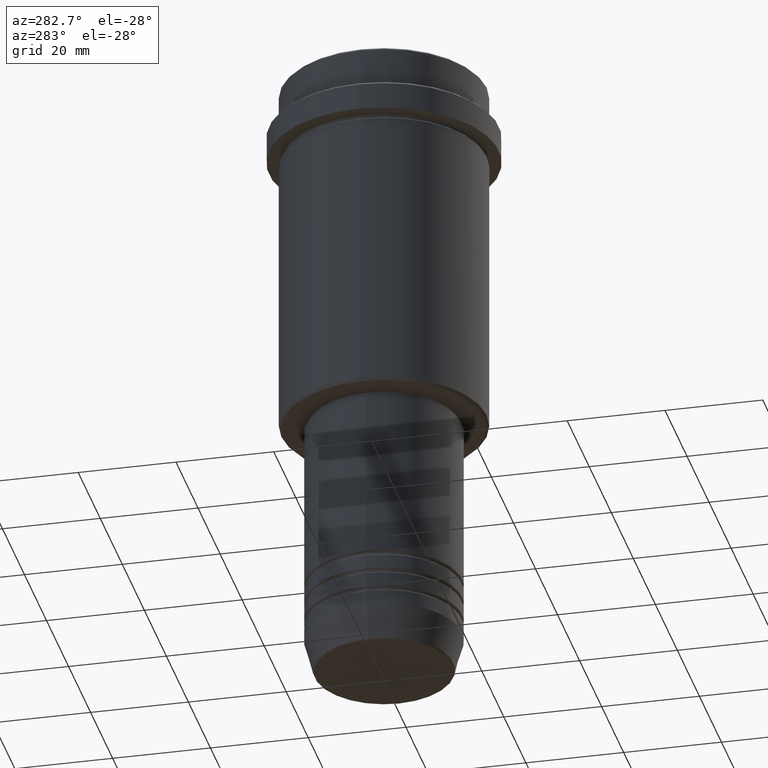
[diagram: clean part render]
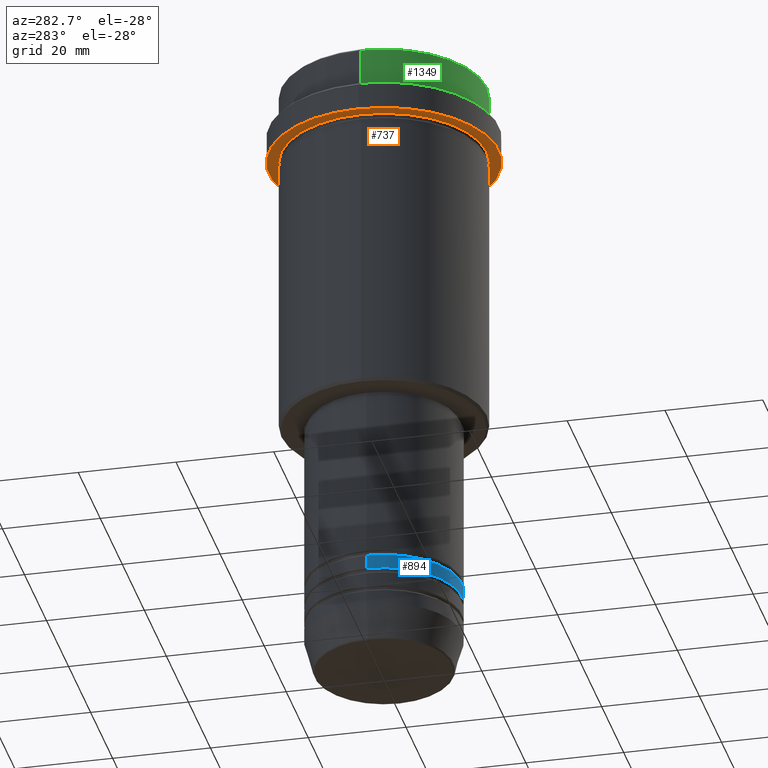
[diagram: same view with three faces highlighted in distinct colors, each labeled with its STEP entity id]
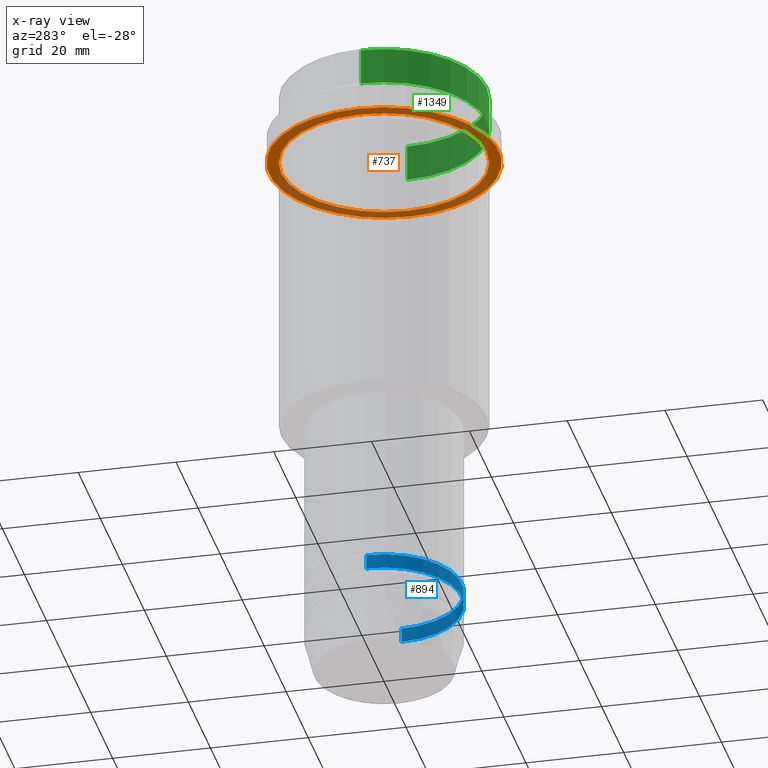
[diagram: x-ray of the same camera — body ghosted, the three highlighted faces saturated]
A machine part, auxiliary view with three faces highlighted in distinct colors.
The next image is the same camera in x-ray (body ghosted, the three faces saturated) — at least one of them is partly hidden behind the body in this view.
Their STEP definitions:

[orange] entity #737 — the highlighted planar face has unit normal (0, 0, -1).
#20 = EDGE_LOOP ( 'NONE', ( #1307, #1347 ) ) ;
#53 = DIRECTION ( 'NONE',  ( -0.000000000000000000, -0.000000000000000000, 1.000000000000000000 ) ) ;
#145 = CARTESIAN_POINT ( 'NONE',  ( -23.50000000000000711, 2.877919977996281109E-15, -15.00000000000000000 ) ) ;
#164 = CARTESIAN_POINT ( 'NONE',  ( 0.000000000000000000, 23.50000000000000355, -15.00000000000000178 ) ) ;
#166 = AXIS2_PLACEMENT_3D ( 'NONE', #164, #712, #1153 ) ;
#186 = CARTESIAN_POINT ( 'NONE',  ( 0.000000000000000000, 0.000000000000000000, -15.00000000000000178 ) ) ;
#187 = CIRCLE ( 'NONE', #833, 20.99999999999999289 ) ;
#270 = EDGE_CURVE ( 'NONE', #1158, #641, #187, .T. ) ;
#281 = EDGE_CURVE ( 'NONE', #618, #1074, #1242, .T. ) ;
#338 = CARTESIAN_POINT ( 'NONE',  ( 20.99999999999999289, 2.571758278209440872E-15, -15.00000000000000178 ) ) ;
#446 = CIRCLE ( 'NONE', #834, 20.99999999999999289 ) ;
#553 = ORIENTED_EDGE ( 'NONE', *, *, #270, .T. ) ;
#600 = FACE_BOUND ( 'NONE', #840, .T. ) ;
#617 = DIRECTION ( 'NONE',  ( -0.000000000000000000, -0.000000000000000000, 1.000000000000000000 ) ) ;
#618 = VERTEX_POINT ( 'NONE', #145 ) ;
#622 = DIRECTION ( 'NONE',  ( 1.000000000000000000, 0.000000000000000000, 0.000000000000000000 ) ) ;
#641 = VERTEX_POINT ( 'NONE', #338 ) ;
#712 = DIRECTION ( 'NONE',  ( 0.000000000000000000, 0.000000000000000000, -1.000000000000000000 ) ) ;
#733 = DIRECTION ( 'NONE',  ( 1.000000000000000000, 0.000000000000000000, 0.000000000000000000 ) ) ;
#737 = ADVANCED_FACE ( 'NONE', ( #600, #1257 ), #1373, .T. ) ;
#741 = AXIS2_PLACEMENT_3D ( 'NONE', #1048, #53, #733 ) ;
#753 = EDGE_CURVE ( 'NONE', #1074, #618, #976, .T. ) ;
#777 = EDGE_CURVE ( 'NONE', #641, #1158, #446, .T. ) ;
#817 = DIRECTION ( 'NONE',  ( -0.000000000000000000, -0.000000000000000000, 1.000000000000000000 ) ) ;
#825 = DIRECTION ( 'NONE',  ( -1.000000000000000000, 0.000000000000000000, 0.000000000000000000 ) ) ;
#833 = AXIS2_PLACEMENT_3D ( 'NONE', #186, #617, #825 ) ;
#834 = AXIS2_PLACEMENT_3D ( 'NONE', #934, #1359, #1367 ) ;
#840 = EDGE_LOOP ( 'NONE', ( #553, #1382 ) ) ;
#934 = CARTESIAN_POINT ( 'NONE',  ( 0.000000000000000000, 0.000000000000000000, -15.00000000000000178 ) ) ;
#946 = CARTESIAN_POINT ( 'NONE',  ( 0.000000000000000000, 0.000000000000000000, -15.00000000000000000 ) ) ;
#976 = CIRCLE ( 'NONE', #1060, 23.50000000000000355 ) ;
#1036 = CARTESIAN_POINT ( 'NONE',  ( -20.99999999999999289, 0.000000000000000000, -15.00000000000000178 ) ) ;
#1048 = CARTESIAN_POINT ( 'NONE',  ( 0.000000000000000000, 0.000000000000000000, -15.00000000000000000 ) ) ;
#1060 = AXIS2_PLACEMENT_3D ( 'NONE', #946, #817, #622 ) ;
#1074 = VERTEX_POINT ( 'NONE', #1239 ) ;
#1153 = DIRECTION ( 'NONE',  ( -1.000000000000000000, 0.000000000000000000, -0.000000000000000000 ) ) ;
#1158 = VERTEX_POINT ( 'NONE', #1036 ) ;
#1239 = CARTESIAN_POINT ( 'NONE',  ( 23.50000000000000355, 0.000000000000000000, -15.00000000000000000 ) ) ;
#1242 = CIRCLE ( 'NONE', #741, 23.50000000000000355 ) ;
#1257 = FACE_OUTER_BOUND ( 'NONE', #20, .T. ) ;
#1307 = ORIENTED_EDGE ( 'NONE', *, *, #753, .F. ) ;
#1347 = ORIENTED_EDGE ( 'NONE', *, *, #281, .F. ) ;
#1359 = DIRECTION ( 'NONE',  ( -0.000000000000000000, -0.000000000000000000, 1.000000000000000000 ) ) ;
#1367 = DIRECTION ( 'NONE',  ( -1.000000000000000000, 0.000000000000000000, 0.000000000000000000 ) ) ;
#1373 = PLANE ( 'NONE',  #166 ) ;
#1382 = ORIENTED_EDGE ( 'NONE', *, *, #777, .T. ) ;

[blue] entity #894 — the highlighted cylindrical surface (partial cylindrical patch) has radius 16 mm, axis along (-0, -0, 1).
#52 = VECTOR ( 'NONE', #1120, 1000.000000000000000 ) ;
#122 = CARTESIAN_POINT ( 'NONE',  ( -16.00000000000000000, 1.959434878635765131E-15, 0.000000000000000000 ) ) ;
#256 = CARTESIAN_POINT ( 'NONE',  ( 0.000000000000000000, 0.000000000000000000, -114.9999999999999005 ) ) ;
#278 = VERTEX_POINT ( 'NONE', #829 ) ;
#297 = CARTESIAN_POINT ( 'NONE',  ( 0.000000000000000000, 0.000000000000000000, 0.000000000000000000 ) ) ;
#306 = CIRCLE ( 'NONE', #1268, 16.00000000000000000 ) ;
#342 = CARTESIAN_POINT ( 'NONE',  ( 16.00000000000000000, 0.000000000000000000, 0.000000000000000000 ) ) ;
#355 = AXIS2_PLACEMENT_3D ( 'NONE', #297, #1089, #527 ) ;
#399 = ORIENTED_EDGE ( 'NONE', *, *, #611, .F. ) ;
#430 = CARTESIAN_POINT ( 'NONE',  ( -16.00000000000000000, 1.959434878635765131E-15, -114.9999999999999005 ) ) ;
#451 = DIRECTION ( 'NONE',  ( -0.000000000000000000, -0.000000000000000000, 1.000000000000000000 ) ) ;
#454 = VERTEX_POINT ( 'NONE', #430 ) ;
#455 = LINE ( 'NONE', #342, #721 ) ;
#523 = EDGE_CURVE ( 'NONE', #278, #1076, #306, .T. ) ;
#527 = DIRECTION ( 'NONE',  ( 1.000000000000000000, 0.000000000000000000, 0.000000000000000000 ) ) ;
#539 = CARTESIAN_POINT ( 'NONE',  ( 16.00000000000000000, 0.000000000000000000, -114.9999999999999005 ) ) ;
#555 = EDGE_CURVE ( 'NONE', #454, #1286, #1293, .T. ) ;
#577 = DIRECTION ( 'NONE',  ( 1.000000000000000000, 0.000000000000000000, 0.000000000000000000 ) ) ;
#583 = ORIENTED_EDGE ( 'NONE', *, *, #555, .T. ) ;
#593 = LINE ( 'NONE', #122, #52 ) ;
#611 = EDGE_CURVE ( 'NONE', #454, #278, #593, .T. ) ;
#661 = FACE_OUTER_BOUND ( 'NONE', #1243, .T. ) ;
#721 = VECTOR ( 'NONE', #1217, 1000.000000000000000 ) ;
#742 = ORIENTED_EDGE ( 'NONE', *, *, #523, .F. ) ;
#784 = DIRECTION ( 'NONE',  ( 1.000000000000000000, 0.000000000000000000, 0.000000000000000000 ) ) ;
#786 = CARTESIAN_POINT ( 'NONE',  ( 16.00000000000000000, 0.000000000000000000, -111.9999999999998863 ) ) ;
#809 = DIRECTION ( 'NONE',  ( -0.000000000000000000, -0.000000000000000000, 1.000000000000000000 ) ) ;
#829 = CARTESIAN_POINT ( 'NONE',  ( -16.00000000000000000, 1.959434878635765131E-15, -111.9999999999998863 ) ) ;
#894 = ADVANCED_FACE ( 'NONE', ( #661 ), #1196, .T. ) ;
#909 = AXIS2_PLACEMENT_3D ( 'NONE', #256, #809, #577 ) ;
#1076 = VERTEX_POINT ( 'NONE', #786 ) ;
#1089 = DIRECTION ( 'NONE',  ( -0.000000000000000000, -0.000000000000000000, 1.000000000000000000 ) ) ;
#1103 = EDGE_CURVE ( 'NONE', #1286, #1076, #455, .T. ) ;
#1120 = DIRECTION ( 'NONE',  ( -0.000000000000000000, -0.000000000000000000, 1.000000000000000000 ) ) ;
#1196 = CYLINDRICAL_SURFACE ( 'NONE', #355, 16.00000000000000000 ) ;
#1217 = DIRECTION ( 'NONE',  ( -0.000000000000000000, -0.000000000000000000, 1.000000000000000000 ) ) ;
#1243 = EDGE_LOOP ( 'NONE', ( #399, #583, #1376, #742 ) ) ;
#1268 = AXIS2_PLACEMENT_3D ( 'NONE', #1329, #451, #784 ) ;
#1286 = VERTEX_POINT ( 'NONE', #539 ) ;
#1293 = CIRCLE ( 'NONE', #909, 16.00000000000000000 ) ;
#1329 = CARTESIAN_POINT ( 'NONE',  ( 0.000000000000000000, 0.000000000000000000, -111.9999999999998863 ) ) ;
#1376 = ORIENTED_EDGE ( 'NONE', *, *, #1103, .T. ) ;

[green] entity #1349 — the highlighted cylindrical surface (partial cylindrical patch) has radius 21 mm, axis along (-0, -0, 1).
#62 = EDGE_LOOP ( 'NONE', ( #869, #798, #1385, #849 ) ) ;
#77 = EDGE_CURVE ( 'NONE', #873, #1309, #121, .T. ) ;
#78 = VERTEX_POINT ( 'NONE', #1405 ) ;
#90 = CARTESIAN_POINT ( 'NONE',  ( 0.000000000000000000, 0.000000000000000000, -0.5000000000000386358 ) ) ;
#112 = DIRECTION ( 'NONE',  ( -0.000000000000000000, -0.000000000000000000, 1.000000000000000000 ) ) ;
#121 = CIRCLE ( 'NONE', #1264, 21.00000000000000000 ) ;
#208 = LINE ( 'NONE', #656, #676 ) ;
#295 = DIRECTION ( 'NONE',  ( -0.000000000000000000, -0.000000000000000000, 1.000000000000000000 ) ) ;
#323 = EDGE_CURVE ( 'NONE', #370, #873, #1053, .T. ) ;
#335 = DIRECTION ( 'NONE',  ( 1.000000000000000000, 0.000000000000000000, 0.000000000000000000 ) ) ;
#370 = VERTEX_POINT ( 'NONE', #769 ) ;
#406 = DIRECTION ( 'NONE',  ( -0.000000000000000000, -0.000000000000000000, 1.000000000000000000 ) ) ;
#487 = EDGE_CURVE ( 'NONE', #78, #1309, #208, .T. ) ;
#531 = DIRECTION ( 'NONE',  ( 1.000000000000000000, 0.000000000000000000, 0.000000000000000000 ) ) ;
#559 = VECTOR ( 'NONE', #406, 1000.000000000000000 ) ;
#601 = EDGE_CURVE ( 'NONE', #78, #370, #743, .T. ) ;
#645 = CARTESIAN_POINT ( 'NONE',  ( 21.00000000000000000, 0.000000000000000000, -0.5000000000000386358 ) ) ;
#656 = CARTESIAN_POINT ( 'NONE',  ( -21.00000000000000000, 2.571758278209441661E-15, 0.000000000000000000 ) ) ;
#676 = VECTOR ( 'NONE', #112, 1000.000000000000000 ) ;
#695 = DIRECTION ( 'NONE',  ( 1.000000000000000000, 0.000000000000000000, 0.000000000000000000 ) ) ;
#700 = CARTESIAN_POINT ( 'NONE',  ( 0.000000000000000000, 0.000000000000000000, -7.999999999999998224 ) ) ;
#743 = CIRCLE ( 'NONE', #1223, 21.00000000000000000 ) ;
#769 = CARTESIAN_POINT ( 'NONE',  ( 21.00000000000000000, 0.000000000000000000, -7.999999999999998224 ) ) ;
#798 = ORIENTED_EDGE ( 'NONE', *, *, #601, .T. ) ;
#849 = ORIENTED_EDGE ( 'NONE', *, *, #77, .T. ) ;
#869 = ORIENTED_EDGE ( 'NONE', *, *, #487, .F. ) ;
#873 = VERTEX_POINT ( 'NONE', #645 ) ;
#889 = DIRECTION ( 'NONE',  ( 0.000000000000000000, 0.000000000000000000, -1.000000000000000000 ) ) ;
#958 = CARTESIAN_POINT ( 'NONE',  ( 21.00000000000000000, 0.000000000000000000, 0.000000000000000000 ) ) ;
#987 = FACE_OUTER_BOUND ( 'NONE', #62, .T. ) ;
#1053 = LINE ( 'NONE', #958, #559 ) ;
#1223 = AXIS2_PLACEMENT_3D ( 'NONE', #700, #1353, #695 ) ;
#1264 = AXIS2_PLACEMENT_3D ( 'NONE', #90, #889, #335 ) ;
#1289 = CARTESIAN_POINT ( 'NONE',  ( -21.00000000000000000, 2.571758278209441661E-15, -0.5000000000000386358 ) ) ;
#1296 = AXIS2_PLACEMENT_3D ( 'NONE', #1299, #295, #531 ) ;
#1299 = CARTESIAN_POINT ( 'NONE',  ( 0.000000000000000000, 0.000000000000000000, 0.000000000000000000 ) ) ;
#1309 = VERTEX_POINT ( 'NONE', #1289 ) ;
#1312 = CYLINDRICAL_SURFACE ( 'NONE', #1296, 21.00000000000000000 ) ;
#1349 = ADVANCED_FACE ( 'NONE', ( #987 ), #1312, .T. ) ;
#1353 = DIRECTION ( 'NONE',  ( -0.000000000000000000, -0.000000000000000000, 1.000000000000000000 ) ) ;
#1385 = ORIENTED_EDGE ( 'NONE', *, *, #323, .T. ) ;
#1405 = CARTESIAN_POINT ( 'NONE',  ( -21.00000000000000000, 2.571758278209441661E-15, -7.999999999999998224 ) ) ;